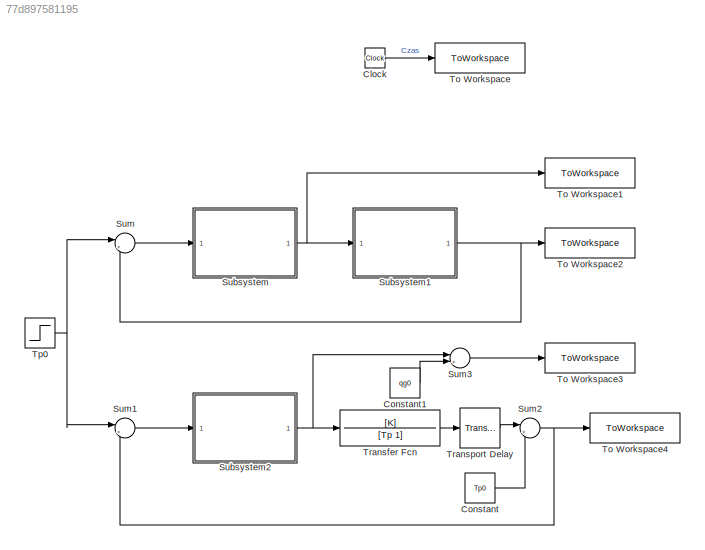
MODEL slx_77d897581195
KIND model
CONFIG AbsTol = auto
CONFIG EnableMultiTasking = off
CONFIG FixedStep = auto
CONFIG MaxStep = 0.01
CONFIG MinStep = auto
CONFIG RelTol = 1e-3
CONFIG SampleTimeConstraint = Unconstrained
CONFIG SolverName = VariableStepAuto
CONFIG StartTime = 0.0
CONFIG StopTime = czas_symulacji
BLOCK [Clock] Clock
BLOCK [Constant] Constant
  Value = Tp0
BLOCK [Constant] Constant1
  Value = qg0
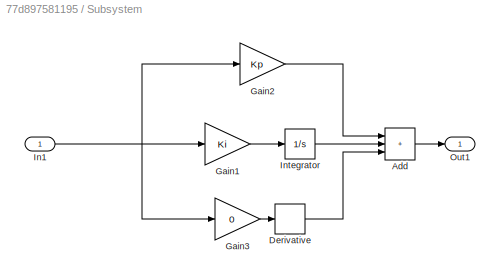
BLOCK [SubSystem] Subsystem
BLOCK [Sum] Subsystem/Add
  IconShape = rectangular
  Inputs = +++
BLOCK [Derivative] Subsystem/Derivative
BLOCK [Gain] Subsystem/Gain1
  Gain = Ki
BLOCK [Gain] Subsystem/Gain2
  Gain = Kp
BLOCK [Gain] Subsystem/Gain3
  Gain = 0
BLOCK [Inport] Subsystem/In1
BLOCK [Integrator] Subsystem/Integrator
  InitialCondition = qg0
BLOCK [Outport] Subsystem/Out1
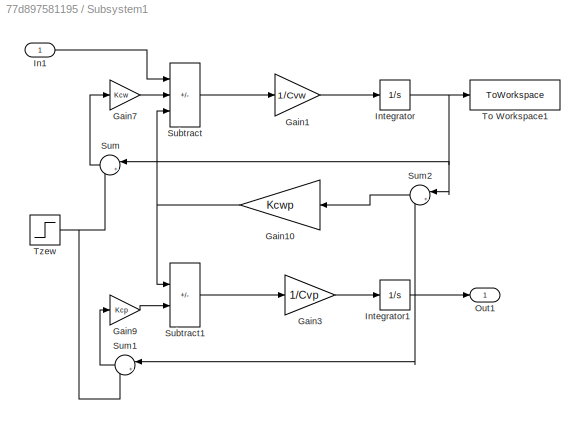
BLOCK [SubSystem] Subsystem1
BLOCK [Gain] Subsystem1/Gain1
  Gain = 1/Cvw
BLOCK [Gain] Subsystem1/Gain10
  Gain = Kcwp
  NameLocation = top
BLOCK [Gain] Subsystem1/Gain3
  Gain = 1/Cvp
BLOCK [Gain] Subsystem1/Gain7
  Gain = Kcw
BLOCK [Gain] Subsystem1/Gain9
  Gain = Kcp
BLOCK [Inport] Subsystem1/In1
BLOCK [Integrator] Subsystem1/Integrator
  InitialCondition = Twew0
BLOCK [Integrator] Subsystem1/Integrator1
  InitialCondition = Tp0
BLOCK [Outport] Subsystem1/Out1
BLOCK [Sum] Subsystem1/Subtract
  IconShape = rectangular
  Inputs = +--
BLOCK [Sum] Subsystem1/Subtract1
  IconShape = rectangular
  Inputs = +-
BLOCK [Sum] Subsystem1/Sum
  Inputs = |+-
  NameLocation = top
BLOCK [Sum] Subsystem1/Sum1
  Inputs = |+-
  NameLocation = top
BLOCK [Sum] Subsystem1/Sum2
  Inputs = |+-
  NameLocation = top
BLOCK [ToWorkspace] Subsystem1/To Workspace1
  FixptAsFi = on
  MaxDataPoints = inf
  SampleTime = -1
  VariableName = Twew
BLOCK [Step] Subsystem1/Tzew
  After = Tzew0 + dTzew
  Before = Tzew0
  SampleTime = 0
  Time = t0
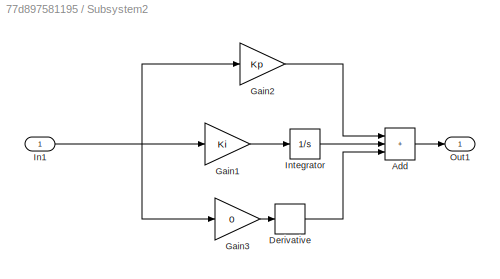
BLOCK [SubSystem] Subsystem2
BLOCK [Sum] Subsystem2/Add
  IconShape = rectangular
  Inputs = +++
BLOCK [Derivative] Subsystem2/Derivative
BLOCK [Gain] Subsystem2/Gain1
  Gain = Ki
BLOCK [Gain] Subsystem2/Gain2
  Gain = Kp
BLOCK [Gain] Subsystem2/Gain3
  Gain = 0
BLOCK [Inport] Subsystem2/In1
BLOCK [Integrator] Subsystem2/Integrator
BLOCK [Outport] Subsystem2/Out1
BLOCK [Sum] Sum
  Inputs = |+-
BLOCK [Sum] Sum1
  Inputs = |+-
BLOCK [Sum] Sum2
  Inputs = |++
BLOCK [Sum] Sum3
  Inputs = |++
BLOCK [ToWorkspace] To Workspace
  FixptAsFi = on
  MaxDataPoints = inf
  SampleTime = -1
  VariableName = t
BLOCK [ToWorkspace] To Workspace1
  FixptAsFi = on
  MaxDataPoints = inf
  SampleTime = -1
  VariableName = qgo
BLOCK [ToWorkspace] To Workspace2
  FixptAsFi = on
  MaxDataPoints = inf
  SampleTime = -1
  VariableName = Tpo
BLOCK [ToWorkspace] To Workspace3
  FixptAsFi = on
  MaxDataPoints = inf
  SampleTime = -1
  VariableName = qgm
BLOCK [ToWorkspace] To Workspace4
  FixptAsFi = on
  MaxDataPoints = inf
  SampleTime = -1
  VariableName = Tpm
BLOCK [Step] Tp0
  After = Tzad + dTzad
  Before = Tzad
  SampleTime = 0
  Time = t0
BLOCK [TransferFcn] Transfer Fcn
  Denominator = [Tp 1]
  Numerator = [K]
BLOCK [TransportDelay] Transport Delay
  DelayTime = t0x
LINE Clock:1 -> To Workspace:1
LINE Constant1:1 -> Sum3:2
LINE Constant:1 -> Sum2:2
LINE Subsystem/Add:1 -> Subsystem/Out1:1
LINE Subsystem/Derivative:1 -> Subsystem/Add:3
LINE Subsystem/Gain1:1 -> Subsystem/Integrator:1
LINE Subsystem/Gain2:1 -> Subsystem/Add:1
LINE Subsystem/Gain3:1 -> Subsystem/Derivative:1
NET Subsystem/In1:1 -> Subsystem/Gain1:1, Subsystem/Gain2:1, Subsystem/Gain3:1
LINE Subsystem/Integrator:1 -> Subsystem/Add:2
NET Subsystem1/Gain10:1 -> Subsystem1/Subtract1:1, Subsystem1/Subtract:3
LINE Subsystem1/Gain1:1 -> Subsystem1/Integrator:1
LINE Subsystem1/Gain3:1 -> Subsystem1/Integrator1:1
LINE Subsystem1/Gain7:1 -> Subsystem1/Subtract:2
LINE Subsystem1/Gain9:1 -> Subsystem1/Subtract1:2
LINE Subsystem1/In1:1 -> Subsystem1/Subtract:1
NET Subsystem1/Integrator1:1 -> Subsystem1/Out1:1, Subsystem1/Sum1:1, Subsystem1/Sum2:2
NET Subsystem1/Integrator:1 -> Subsystem1/Sum2:1, Subsystem1/Sum:1, Subsystem1/To Workspace1:1
LINE Subsystem1/Subtract1:1 -> Subsystem1/Gain3:1
LINE Subsystem1/Subtract:1 -> Subsystem1/Gain1:1
LINE Subsystem1/Sum1:1 -> Subsystem1/Gain9:1
LINE Subsystem1/Sum2:1 -> Subsystem1/Gain10:1
LINE Subsystem1/Sum:1 -> Subsystem1/Gain7:1
NET Subsystem1/Tzew:1 -> Subsystem1/Sum1:2, Subsystem1/Sum:2
NET Subsystem1:1 -> Sum:2, To Workspace2:1
LINE Subsystem2/Add:1 -> Subsystem2/Out1:1
LINE Subsystem2/Derivative:1 -> Subsystem2/Add:3
LINE Subsystem2/Gain1:1 -> Subsystem2/Integrator:1
LINE Subsystem2/Gain2:1 -> Subsystem2/Add:1
LINE Subsystem2/Gain3:1 -> Subsystem2/Derivative:1
NET Subsystem2/In1:1 -> Subsystem2/Gain1:1, Subsystem2/Gain2:1, Subsystem2/Gain3:1
LINE Subsystem2/Integrator:1 -> Subsystem2/Add:2
NET Subsystem2:1 -> Sum3:1, Transfer Fcn:1
NET Subsystem:1 -> Subsystem1:1, To Workspace1:1
LINE Sum1:1 -> Subsystem2:1
NET Sum2:1 -> Sum1:2, To Workspace4:1
LINE Sum3:1 -> To Workspace3:1
LINE Sum:1 -> Subsystem:1
NET Tp0:1 -> Sum1:1, Sum:1
LINE Transfer Fcn:1 -> Transport Delay:1
LINE Transport Delay:1 -> Sum2:1
note: NET lines group one-source signal fan-out (src -> all destinations, sorted); 1:1 wires keep LINE
